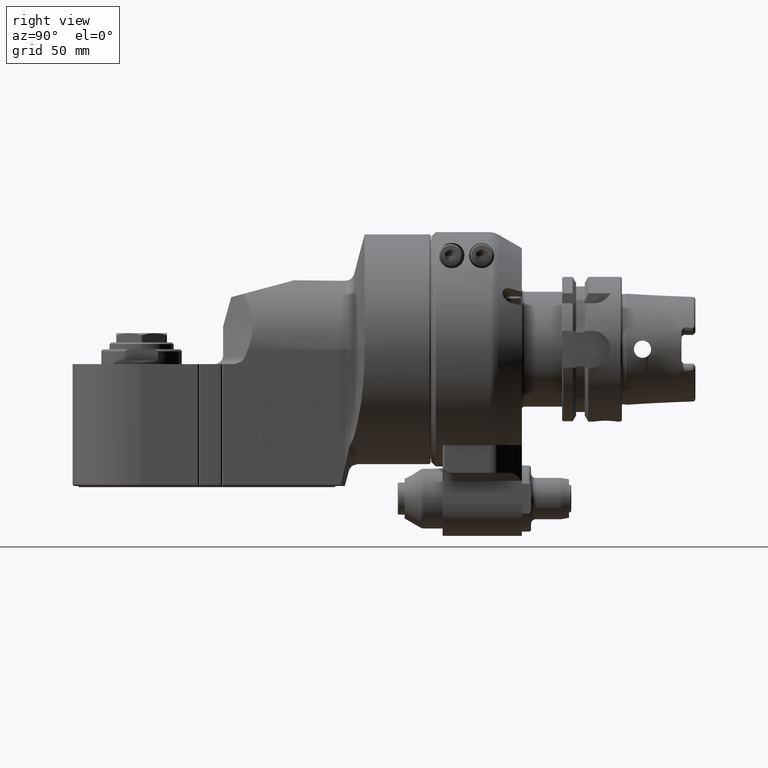
[diagram: clean part render]
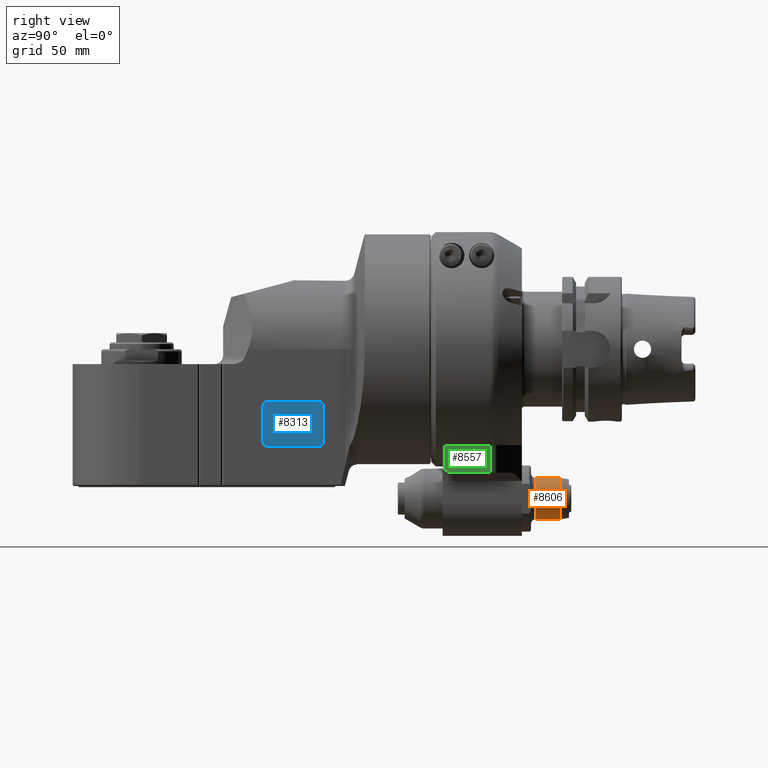
[diagram: same view with three faces highlighted in distinct colors, each labeled with its STEP entity id]
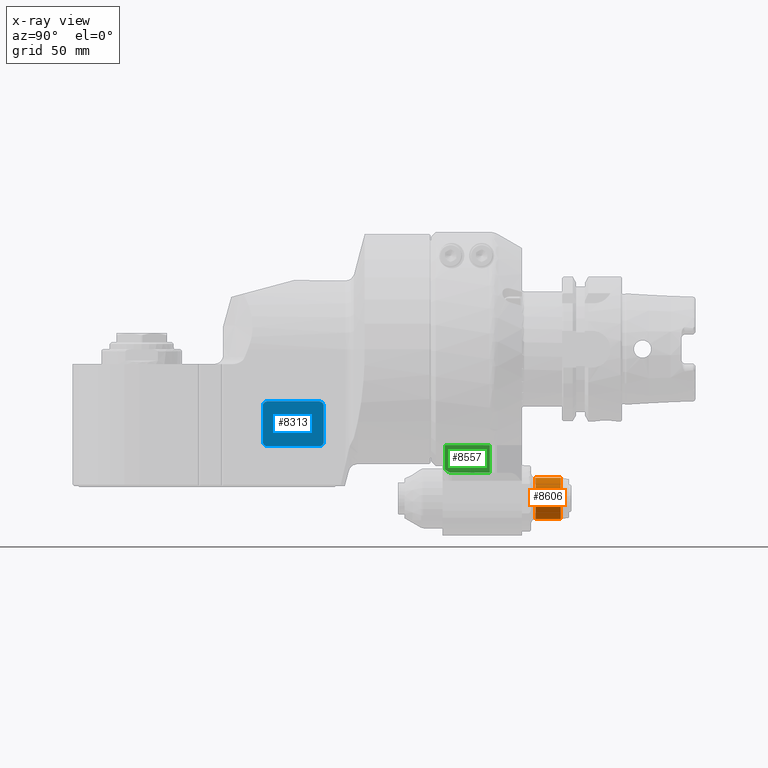
[diagram: x-ray of the same camera — body ghosted, the three highlighted faces saturated]
A machine part, right view with three faces highlighted in distinct colors.
The next image is the same camera in x-ray (body ghosted, the three faces saturated) — at least one of them is partly hidden behind the body in this view.
Their STEP definitions:

[orange] entity #8606 — the highlighted cylindrical surface (bore or boss wall) has radius 9 mm, axis along (0, 1, 0).
#1121=FACE_OUTER_BOUND('',#1655,.T.);
#1655=EDGE_LOOP('',(#7648,#7649,#7650,#7651,#7652,#7653));
#2257=LINE('',#15769,#2824);
#2824=VECTOR('',#11754,9.);
#3276=CIRCLE('',#9530,9.);
#3277=CIRCLE('',#9531,9.);
#3279=CIRCLE('',#9534,9.);
#3280=CIRCLE('',#9535,9.);
#4085=VERTEX_POINT('',#15760);
#4086=VERTEX_POINT('',#15761);
#4087=VERTEX_POINT('',#15766);
#4088=VERTEX_POINT('',#15767);
#5300=EDGE_CURVE('',#4085,#4086,#3276,.T.);
#5301=EDGE_CURVE('',#4086,#4085,#3277,.T.);
#5303=EDGE_CURVE('',#4087,#4088,#3279,.T.);
#5304=EDGE_CURVE('',#4088,#4085,#2257,.T.);
#5305=EDGE_CURVE('',#4088,#4087,#3280,.T.);
#7648=ORIENTED_EDGE('',*,*,#5303,.T.);
#7649=ORIENTED_EDGE('',*,*,#5304,.T.);
#7650=ORIENTED_EDGE('',*,*,#5300,.T.);
#7651=ORIENTED_EDGE('',*,*,#5301,.T.);
#7652=ORIENTED_EDGE('',*,*,#5304,.F.);
#7653=ORIENTED_EDGE('',*,*,#5305,.T.);
#8189=CYLINDRICAL_SURFACE('',#9533,9.);
#8606=ADVANCED_FACE('',(#1121),#8189,.T.);
#9530=AXIS2_PLACEMENT_3D('',#15762,#11744,#11745);
#9531=AXIS2_PLACEMENT_3D('',#15763,#11746,#11747);
#9533=AXIS2_PLACEMENT_3D('',#15765,#11750,#11751);
#9534=AXIS2_PLACEMENT_3D('',#15768,#11752,#11753);
#9535=AXIS2_PLACEMENT_3D('',#15770,#11755,#11756);
#11744=DIRECTION('center_axis',(0.,1.,0.));
#11745=DIRECTION('ref_axis',(0.,0.,-1.));
#11746=DIRECTION('center_axis',(0.,1.,0.));
#11747=DIRECTION('ref_axis',(0.,0.,-1.));
#11750=DIRECTION('center_axis',(0.,1.,0.));
#11751=DIRECTION('ref_axis',(0.,0.,1.));
#11752=DIRECTION('center_axis',(0.,-1.,0.));
#11753=DIRECTION('ref_axis',(0.,0.,-1.));
#11754=DIRECTION('',(0.,-1.,0.));
#11755=DIRECTION('center_axis',(0.,-1.,0.));
#11756=DIRECTION('ref_axis',(0.,0.,-1.));
#15760=CARTESIAN_POINT('',(0.,45.5,-74.));
#15761=CARTESIAN_POINT('',(-0.179267999534907,45.5,-56.0017855668837));
#15762=CARTESIAN_POINT('Origin',(0.,45.5,-65.));
#15763=CARTESIAN_POINT('Origin',(0.,45.5,-65.));
#15765=CARTESIAN_POINT('Origin',(0.,27.975,-65.));
#15766=CARTESIAN_POINT('',(0.,56.4307975707,-56.));
#15767=CARTESIAN_POINT('',(-1.10218211923262E-15,56.4307975707,-74.));
#15768=CARTESIAN_POINT('Origin',(0.,56.4307975707,-65.));
#15769=CARTESIAN_POINT('',(-1.10218211923262E-15,27.975,-74.));
#15770=CARTESIAN_POINT('Origin',(0.,56.4307975707,-65.));

[blue] entity #8313 — the highlighted planar face has unit normal (1, 0, -0).
#440=PLANE('',#8965);
#828=FACE_OUTER_BOUND('',#1329,.T.);
#1329=EDGE_LOOP('',(#6013,#6014,#6015,#6016,#6017,#6018,#6019,#6020));
#1875=LINE('',#12906,#2442);
#1876=LINE('',#12910,#2443);
#1877=LINE('',#12914,#2444);
#1878=LINE('',#12917,#2445);
#2442=VECTOR('',#10234,22.5);
#2443=VECTOR('',#10237,15.5);
#2444=VECTOR('',#10240,22.5);
#2445=VECTOR('',#10243,15.5);
#3012=CIRCLE('',#8964,2.);
#3013=CIRCLE('',#8966,2.);
#3014=CIRCLE('',#8967,2.);
#3015=CIRCLE('',#8968,2.);
#3526=VERTEX_POINT('',#12899);
#3527=VERTEX_POINT('',#12900);
#3528=VERTEX_POINT('',#12905);
#3529=VERTEX_POINT('',#12907);
#3530=VERTEX_POINT('',#12909);
#3531=VERTEX_POINT('',#12911);
#3532=VERTEX_POINT('',#12913);
#3533=VERTEX_POINT('',#12915);
#4472=EDGE_CURVE('',#3526,#3527,#3012,.T.);
#4475=EDGE_CURVE('',#3528,#3527,#1875,.T.);
#4476=EDGE_CURVE('',#3528,#3529,#3013,.T.);
#4477=EDGE_CURVE('',#3530,#3529,#1876,.T.);
#4478=EDGE_CURVE('',#3530,#3531,#3014,.T.);
#4479=EDGE_CURVE('',#3532,#3531,#1877,.T.);
#4480=EDGE_CURVE('',#3533,#3532,#3015,.T.);
#4481=EDGE_CURVE('',#3526,#3533,#1878,.T.);
#6013=ORIENTED_EDGE('',*,*,#4472,.T.);
#6014=ORIENTED_EDGE('',*,*,#4475,.F.);
#6015=ORIENTED_EDGE('',*,*,#4476,.T.);
#6016=ORIENTED_EDGE('',*,*,#4477,.F.);
#6017=ORIENTED_EDGE('',*,*,#4478,.T.);
#6018=ORIENTED_EDGE('',*,*,#4479,.F.);
#6019=ORIENTED_EDGE('',*,*,#4480,.F.);
#6020=ORIENTED_EDGE('',*,*,#4481,.F.);
#8313=ADVANCED_FACE('',(#828),#440,.T.);
#8964=AXIS2_PLACEMENT_3D('',#12901,#10228,#10229);
#8965=AXIS2_PLACEMENT_3D('',#12904,#10232,#10233);
#8966=AXIS2_PLACEMENT_3D('',#12908,#10235,#10236);
#8967=AXIS2_PLACEMENT_3D('',#12912,#10238,#10239);
#8968=AXIS2_PLACEMENT_3D('',#12916,#10241,#10242);
#10228=DIRECTION('center_axis',(0.,0.,1.));
#10229=DIRECTION('ref_axis',(-1.,0.,0.));
#10232=DIRECTION('center_axis',(0.,0.,1.));
#10233=DIRECTION('ref_axis',(1.,0.,0.));
#10234=DIRECTION('',(-1.,0.,0.));
#10235=DIRECTION('center_axis',(0.,0.,1.));
#10236=DIRECTION('ref_axis',(0.,-1.,0.));
#10237=DIRECTION('',(0.,-1.,0.));
#10238=DIRECTION('center_axis',(0.,0.,1.));
#10239=DIRECTION('ref_axis',(1.,0.,0.));
#10240=DIRECTION('',(1.,0.,0.));
#10241=DIRECTION('center_axis',(0.,0.,-1.));
#10242=DIRECTION('ref_axis',(-1.,0.,0.));
#10243=DIRECTION('',(0.,1.,0.));
#12899=CARTESIAN_POINT('',(50.75,24.75,29.6));
#12900=CARTESIAN_POINT('',(52.75,22.75,29.6));
#12901=CARTESIAN_POINT('Origin',(52.75,24.75,29.6));
#12904=CARTESIAN_POINT('Origin',(0.,0.,29.6));
#12905=CARTESIAN_POINT('',(75.25,22.75,29.6));
#12906=CARTESIAN_POINT('',(75.25,22.75,29.6));
#12907=CARTESIAN_POINT('',(77.25,24.75,29.6));
#12908=CARTESIAN_POINT('Origin',(75.25,24.75,29.6));
#12909=CARTESIAN_POINT('',(77.25,40.25,29.6));
#12910=CARTESIAN_POINT('',(77.25,40.25,29.6));
#12911=CARTESIAN_POINT('',(75.25,42.25,29.6));
#12912=CARTESIAN_POINT('Origin',(75.25,40.25,29.6));
#12913=CARTESIAN_POINT('',(52.75,42.25,29.6));
#12914=CARTESIAN_POINT('',(52.75,42.25,29.6));
#12915=CARTESIAN_POINT('',(50.75,40.25,29.6));
#12916=CARTESIAN_POINT('Origin',(52.75,40.25,29.6));
#12917=CARTESIAN_POINT('',(50.75,24.75,29.6));

[green] entity #8557 — the highlighted planar face has unit normal (-1, 0, 0).
#134=(
BOUNDED_CURVE()
B_SPLINE_CURVE(2,(#15351,#15352,#15353),.UNSPECIFIED.,.F.,.F.)
B_SPLINE_CURVE_WITH_KNOTS((3,3),(1.73736103353156,2.47170469126801),
 .UNSPECIFIED.)
CURVE()
GEOMETRIC_REPRESENTATION_ITEM()
RATIONAL_B_SPLINE_CURVE((1.75262800199672,1.75262800199672,1.61816620350837))
REPRESENTATION_ITEM('')
);
#566=PLANE('',#9436);
#1072=FACE_OUTER_BOUND('',#1598,.T.);
#1598=EDGE_LOOP('',(#7354,#7355,#7356,#7357,#7358));
#2163=LINE('',#15341,#2730);
#2166=LINE('',#15348,#2733);
#2167=LINE('',#15350,#2734);
#2168=LINE('',#15354,#2735);
#2730=VECTOR('',#11462,16.58801200719);
#2733=VECTOR('',#11467,19.58801152481);
#2734=VECTOR('',#11468,10.59664825895);
#2735=VECTOR('',#11469,12.03589858901);
#3972=VERTEX_POINT('',#15334);
#3974=VERTEX_POINT('',#15340);
#3976=VERTEX_POINT('',#15346);
#3977=VERTEX_POINT('',#15347);
#3978=VERTEX_POINT('',#15349);
#5142=EDGE_CURVE('',#3974,#3972,#2163,.T.);
#5145=EDGE_CURVE('',#3976,#3977,#2166,.T.);
#5146=EDGE_CURVE('',#3978,#3976,#2167,.T.);
#5147=EDGE_CURVE('',#3974,#3978,#134,.T.);
#5148=EDGE_CURVE('',#3977,#3972,#2168,.T.);
#7354=ORIENTED_EDGE('',*,*,#5145,.F.);
#7355=ORIENTED_EDGE('',*,*,#5146,.F.);
#7356=ORIENTED_EDGE('',*,*,#5147,.F.);
#7357=ORIENTED_EDGE('',*,*,#5142,.T.);
#7358=ORIENTED_EDGE('',*,*,#5148,.F.);
#8557=ADVANCED_FACE('',(#1072),#566,.F.);
#9436=AXIS2_PLACEMENT_3D('',#15345,#11465,#11466);
#11462=DIRECTION('',(4.371282475133E-12,1.,1.17976780454E-8));
#11465=DIRECTION('center_axis',(-1.,0.,0.));
#11466=DIRECTION('ref_axis',(0.,0.,-1.));
#11467=DIRECTION('',(0.,1.,0.));
#11468=DIRECTION('',(3.486783873224E-14,8.150357303662E-13,1.));
#11469=DIRECTION('',(6.022780049711E-12,-1.751169642154E-10,-1.));
#15334=CARTESIAN_POINT('',(29.0000000101783,25.5880115227062,-53.7858985008135));
#15340=CARTESIAN_POINT('',(29.,8.99999951552,-53.78589878471));
#15341=CARTESIAN_POINT('',(29.,8.99999951552,-53.78589878471));
#15345=CARTESIAN_POINT('Origin',(29.,31.,-75.75));
#15346=CARTESIAN_POINT('',(29.,6.,-41.75));
#15347=CARTESIAN_POINT('',(29.,25.58801152481,-41.75));
#15348=CARTESIAN_POINT('',(29.,6.,-41.75));
#15349=CARTESIAN_POINT('',(29.,5.99999999999,-52.34664825895));
#15350=CARTESIAN_POINT('',(29.,5.99999999999,-52.34664825895));
#15351=CARTESIAN_POINT('Ctrl Pts',(29.,8.99999951551998,-53.7858987847063));
#15352=CARTESIAN_POINT('Ctrl Pts',(29.,7.61507989170259,-53.7858987847063));
#15353=CARTESIAN_POINT('Ctrl Pts',(29.,6.00000000007517,-52.3466482590111));
#15354=CARTESIAN_POINT('',(29.,25.58801152481,-41.75));